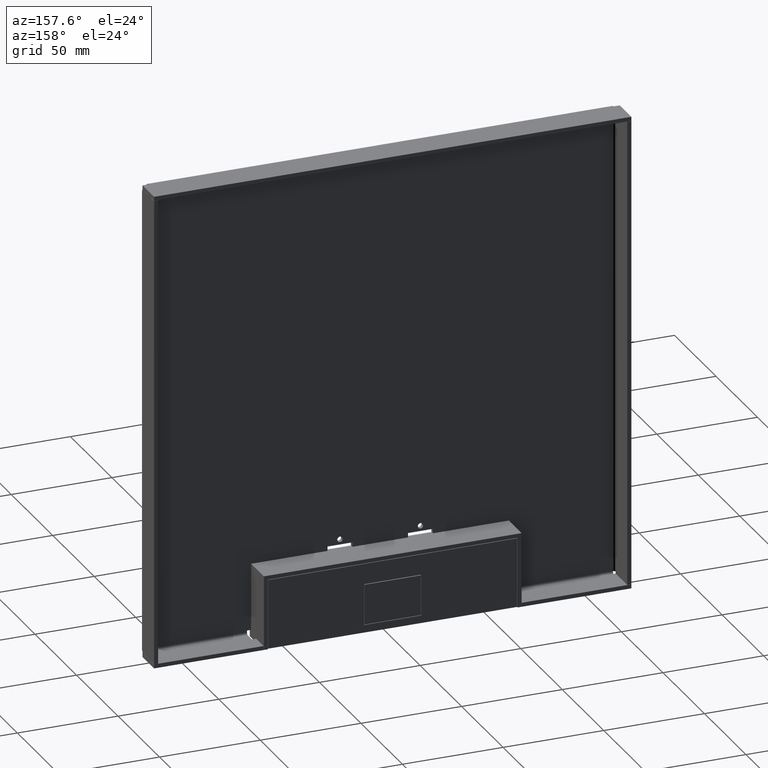
[diagram: clean part render]
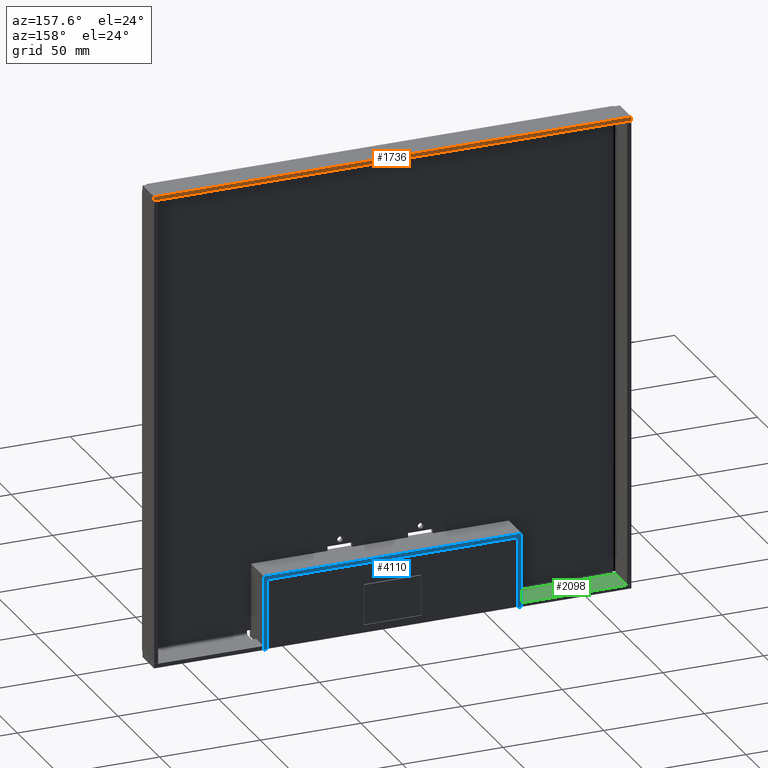
[diagram: same view with three faces highlighted in distinct colors, each labeled with its STEP entity id]
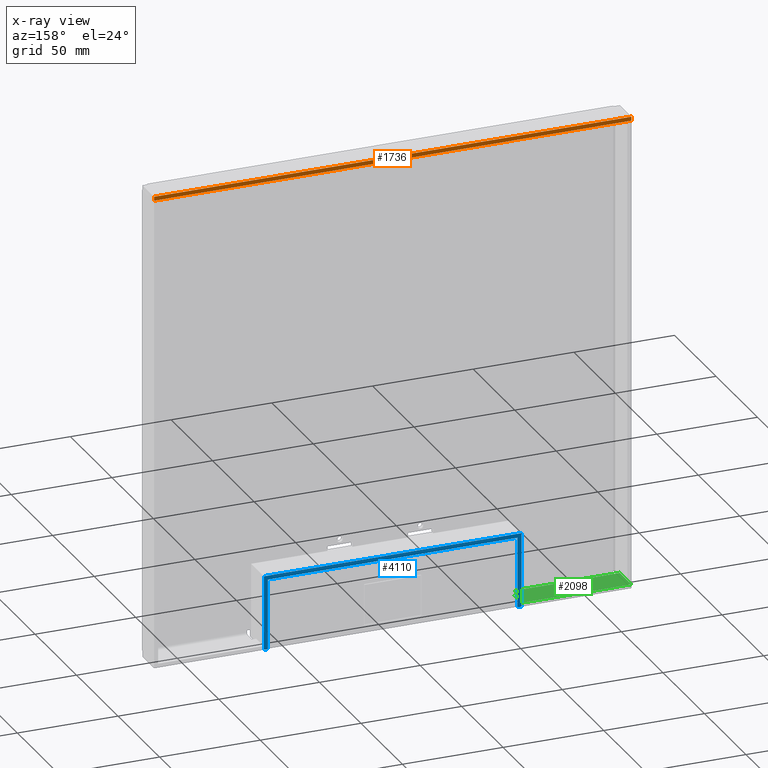
[diagram: x-ray of the same camera — body ghosted, the three highlighted faces saturated]
A machine part, auxiliary view with three faces highlighted in distinct colors.
The next image is the same camera in x-ray (body ghosted, the three faces saturated) — at least one of them is partly hidden behind the body in this view.
Their STEP definitions:

[orange] entity #1736 — the highlighted planar face has unit normal (0, -1, 0).
#649=DIRECTION('',(1.E0,0.E0,0.E0));
#650=VECTOR('',#649,2.37E2);
#651=CARTESIAN_POINT('',(-1.185E2,1.7E1,1.165E2));
#652=LINE('',#651,#650);
#653=DIRECTION('',(-1.E0,0.E0,0.E0));
#654=VECTOR('',#653,2.37E2);
#655=CARTESIAN_POINT('',(1.185E2,1.7E1,1.185E2));
#656=LINE('',#655,#654);
#1049=DIRECTION('',(0.E0,0.E0,-1.E0));
#1050=VECTOR('',#1049,2.E0);
#1051=CARTESIAN_POINT('',(-1.185E2,1.7E1,1.185E2));
#1052=LINE('',#1051,#1050);
#1057=DIRECTION('',(0.E0,0.E0,-1.E0));
#1058=VECTOR('',#1057,2.E0);
#1059=CARTESIAN_POINT('',(1.185E2,1.7E1,1.185E2));
#1060=LINE('',#1059,#1058);
#1165=CARTESIAN_POINT('',(-1.185E2,1.7E1,1.185E2));
#1166=VERTEX_POINT('',#1165);
#1171=CARTESIAN_POINT('',(-1.185E2,1.7E1,1.165E2));
#1172=VERTEX_POINT('',#1171);
#1189=CARTESIAN_POINT('',(1.185E2,1.7E1,1.185E2));
#1190=VERTEX_POINT('',#1189);
#1195=CARTESIAN_POINT('',(1.185E2,1.7E1,1.165E2));
#1196=VERTEX_POINT('',#1195);
#1722=CARTESIAN_POINT('',(-5.925E1,1.7E1,1.175E2));
#1723=DIRECTION('',(0.E0,-1.E0,0.E0));
#1724=DIRECTION('',(1.E0,0.E0,0.E0));
#1725=AXIS2_PLACEMENT_3D('',#1722,#1723,#1724);
#1726=PLANE('',#1725);
#1728=ORIENTED_EDGE('',*,*,#1727,.T.);
#1730=ORIENTED_EDGE('',*,*,#1729,.F.);
#1731=ORIENTED_EDGE('',*,*,#1708,.T.);
#1733=ORIENTED_EDGE('',*,*,#1732,.T.);
#1734=EDGE_LOOP('',(#1728,#1730,#1731,#1733));
#1735=FACE_OUTER_BOUND('',#1734,.F.);
#1708=EDGE_CURVE('',#1190,#1166,#656,.T.);
#1727=EDGE_CURVE('',#1172,#1196,#652,.T.);
#1729=EDGE_CURVE('',#1190,#1196,#1060,.T.);
#1732=EDGE_CURVE('',#1166,#1172,#1052,.T.);
#1736=ADVANCED_FACE('',(#1735),#1726,.F.);

[blue] entity #4110 — the highlighted planar face has unit normal (0, 1, 0).
#3912=DIRECTION('',(-1.E0,0.E0,0.E0));
#3913=VECTOR('',#3912,1.28E2);
#3914=CARTESIAN_POINT('',(6.4E1,1.7E1,-3.7E1));
#3915=LINE('',#3914,#3913);
#3919=DIRECTION('',(0.E0,0.E0,1.E0));
#3920=VECTOR('',#3919,3.7E1);
#3921=CARTESIAN_POINT('',(6.4E1,1.7E1,-3.7E1));
#3922=LINE('',#3921,#3920);
#3926=DIRECTION('',(-1.E0,0.E0,0.E0));
#3927=VECTOR('',#3926,2.E0);
#3928=CARTESIAN_POINT('',(6.4E1,1.7E1,0.E0));
#3929=LINE('',#3928,#3927);
#3933=DIRECTION('',(0.E0,0.E0,-1.E0));
#3934=VECTOR('',#3933,3.5E1);
#3935=CARTESIAN_POINT('',(6.2E1,1.7E1,0.E0));
#3936=LINE('',#3935,#3934);
#3940=DIRECTION('',(1.E0,0.E0,0.E0));
#3941=VECTOR('',#3940,1.24E2);
#3942=CARTESIAN_POINT('',(-6.2E1,1.7E1,-3.5E1));
#3943=LINE('',#3942,#3941);
#3947=DIRECTION('',(0.E0,0.E0,-1.E0));
#3948=VECTOR('',#3947,3.5E1);
#3949=CARTESIAN_POINT('',(-6.2E1,1.7E1,0.E0));
#3950=LINE('',#3949,#3948);
#3954=DIRECTION('',(1.E0,0.E0,0.E0));
#3955=VECTOR('',#3954,2.E0);
#3956=CARTESIAN_POINT('',(-6.4E1,1.7E1,0.E0));
#3957=LINE('',#3956,#3955);
#3961=DIRECTION('',(0.E0,0.E0,1.E0));
#3962=VECTOR('',#3961,3.7E1);
#3963=CARTESIAN_POINT('',(-6.4E1,1.7E1,-3.7E1));
#3964=LINE('',#3963,#3962);
#4025=CARTESIAN_POINT('',(-6.4E1,1.7E1,-3.7E1));
#4026=CARTESIAN_POINT('',(-6.4E1,1.7E1,0.E0));
#4027=VERTEX_POINT('',#4025);
#4028=VERTEX_POINT('',#4026);
#4029=CARTESIAN_POINT('',(-6.2E1,1.7E1,0.E0));
#4030=VERTEX_POINT('',#4029);
#4031=CARTESIAN_POINT('',(-6.2E1,1.7E1,-3.5E1));
#4032=VERTEX_POINT('',#4031);
#4037=CARTESIAN_POINT('',(6.4E1,1.7E1,-3.7E1));
#4038=CARTESIAN_POINT('',(6.4E1,1.7E1,0.E0));
#4039=VERTEX_POINT('',#4037);
#4040=VERTEX_POINT('',#4038);
#4041=CARTESIAN_POINT('',(6.2E1,1.7E1,0.E0));
#4042=VERTEX_POINT('',#4041);
#4043=CARTESIAN_POINT('',(6.2E1,1.7E1,-3.5E1));
#4044=VERTEX_POINT('',#4043);
#4088=CARTESIAN_POINT('',(0.E0,1.7E1,0.E0));
#4089=DIRECTION('',(0.E0,1.E0,0.E0));
#4090=DIRECTION('',(0.E0,0.E0,1.E0));
#4091=AXIS2_PLACEMENT_3D('',#4088,#4089,#4090);
#4092=PLANE('',#4091);
#4094=ORIENTED_EDGE('',*,*,#4093,.F.);
#4096=ORIENTED_EDGE('',*,*,#4095,.T.);
#4098=ORIENTED_EDGE('',*,*,#4097,.T.);
#4100=ORIENTED_EDGE('',*,*,#4099,.T.);
#4101=ORIENTED_EDGE('',*,*,#4078,.F.);
#4103=ORIENTED_EDGE('',*,*,#4102,.F.);
#4105=ORIENTED_EDGE('',*,*,#4104,.F.);
#4107=ORIENTED_EDGE('',*,*,#4106,.F.);
#4108=EDGE_LOOP('',(#4094,#4096,#4098,#4100,#4101,#4103,#4105,#4107));
#4109=FACE_OUTER_BOUND('',#4108,.F.);
#4078=EDGE_CURVE('',#4032,#4044,#3943,.T.);
#4093=EDGE_CURVE('',#4039,#4027,#3915,.T.);
#4095=EDGE_CURVE('',#4039,#4040,#3922,.T.);
#4097=EDGE_CURVE('',#4040,#4042,#3929,.T.);
#4099=EDGE_CURVE('',#4042,#4044,#3936,.T.);
#4102=EDGE_CURVE('',#4030,#4032,#3950,.T.);
#4104=EDGE_CURVE('',#4028,#4030,#3957,.T.);
#4106=EDGE_CURVE('',#4027,#4028,#3964,.T.);
#4110=ADVANCED_FACE('',(#4109),#4092,.T.);

[green] entity #2098 — the highlighted planar face has unit normal (0, 0, -1).
#867=DIRECTION('',(1.E0,0.E0,0.E0));
#868=VECTOR('',#867,4.93E1);
#869=CARTESIAN_POINT('',(-1.155E2,3.E0,-1.165E2));
#870=LINE('',#869,#868);
#871=DIRECTION('',(0.E0,1.E0,0.E0));
#872=VECTOR('',#871,5.1E0);
#873=CARTESIAN_POINT('',(-6.62E1,3.E0,-1.165E2));
#874=LINE('',#873,#872);
#875=DIRECTION('',(-1.E0,0.E0,0.E0));
#876=VECTOR('',#875,3.E0);
#877=CARTESIAN_POINT('',(-1.155E2,3.E0,-1.165E2));
#878=LINE('',#877,#876);
#879=DIRECTION('',(0.E0,1.E0,0.E0));
#880=VECTOR('',#879,1.4E1);
#881=CARTESIAN_POINT('',(-1.185E2,3.E0,-1.165E2));
#882=LINE('',#881,#880);
#883=DIRECTION('',(0.E0,1.E0,0.E0));
#884=VECTOR('',#883,8.9E0);
#885=CARTESIAN_POINT('',(-6.415E1,8.1E0,-1.165E2));
#886=LINE('',#885,#884);
#887=DIRECTION('',(-1.E0,0.E0,0.E0));
#888=VECTOR('',#887,2.05E0);
#889=CARTESIAN_POINT('',(-6.415E1,8.1E0,-1.165E2));
#890=LINE('',#889,#888);
#995=DIRECTION('',(-1.E0,0.E0,0.E0));
#996=VECTOR('',#995,5.435E1);
#997=CARTESIAN_POINT('',(-6.415E1,1.7E1,-1.165E2));
#998=LINE('',#997,#996);
#1155=CARTESIAN_POINT('',(-1.155E2,3.E0,-1.165E2));
#1156=CARTESIAN_POINT('',(-1.185E2,3.E0,-1.165E2));
#1157=VERTEX_POINT('',#1155);
#1158=VERTEX_POINT('',#1156);
#1159=CARTESIAN_POINT('',(-1.185E2,1.7E1,-1.165E2));
#1160=VERTEX_POINT('',#1159);
#1201=CARTESIAN_POINT('',(-6.415E1,1.7E1,-1.165E2));
#1202=VERTEX_POINT('',#1201);
#1233=CARTESIAN_POINT('',(-6.62E1,3.E0,-1.165E2));
#1234=CARTESIAN_POINT('',(-6.62E1,8.1E0,-1.165E2));
#1235=VERTEX_POINT('',#1233);
#1236=VERTEX_POINT('',#1234);
#1275=CARTESIAN_POINT('',(-6.415E1,8.1E0,-1.165E2));
#1276=VERTEX_POINT('',#1275);
#2078=CARTESIAN_POINT('',(-2.74428E1,0.E0,-1.165E2));
#2079=DIRECTION('',(0.E0,0.E0,-1.E0));
#2080=DIRECTION('',(-1.E0,0.E0,0.E0));
#2081=AXIS2_PLACEMENT_3D('',#2078,#2079,#2080);
#2082=PLANE('',#2081);
#2084=ORIENTED_EDGE('',*,*,#2083,.F.);
#2085=ORIENTED_EDGE('',*,*,#2073,.F.);
#2087=ORIENTED_EDGE('',*,*,#2086,.T.);
#2089=ORIENTED_EDGE('',*,*,#2088,.T.);
#2091=ORIENTED_EDGE('',*,*,#2090,.F.);
#2093=ORIENTED_EDGE('',*,*,#2092,.F.);
#2095=ORIENTED_EDGE('',*,*,#2094,.T.);
#2096=EDGE_LOOP('',(#2084,#2085,#2087,#2089,#2091,#2093,#2095));
#2097=FACE_OUTER_BOUND('',#2096,.F.);
#2073=EDGE_CURVE('',#1157,#1235,#870,.T.);
#2083=EDGE_CURVE('',#1235,#1236,#874,.T.);
#2086=EDGE_CURVE('',#1157,#1158,#878,.T.);
#2088=EDGE_CURVE('',#1158,#1160,#882,.T.);
#2090=EDGE_CURVE('',#1202,#1160,#998,.T.);
#2092=EDGE_CURVE('',#1276,#1202,#886,.T.);
#2094=EDGE_CURVE('',#1276,#1236,#890,.T.);
#2098=ADVANCED_FACE('',(#2097),#2082,.F.);